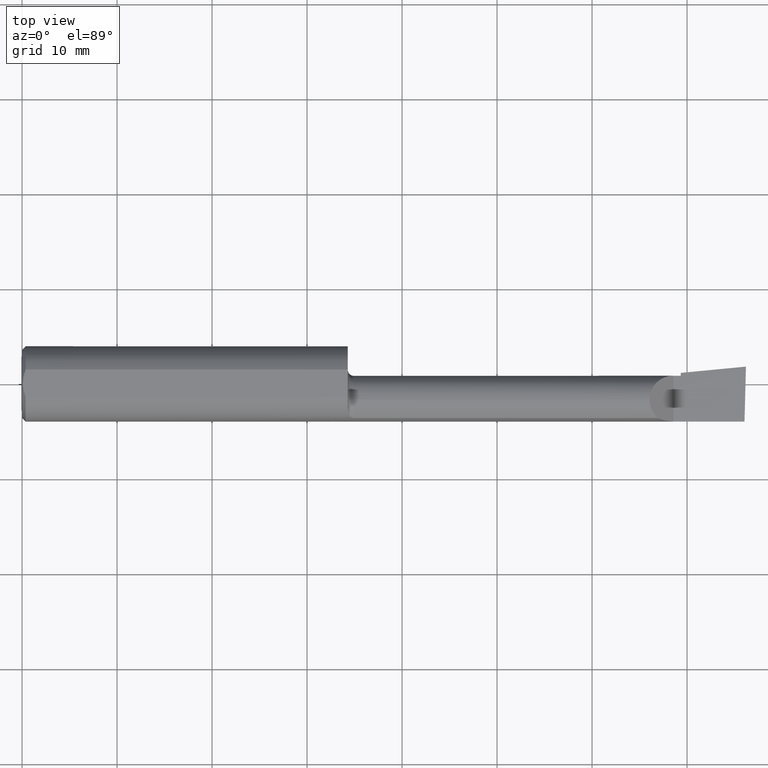
[diagram: clean part render]
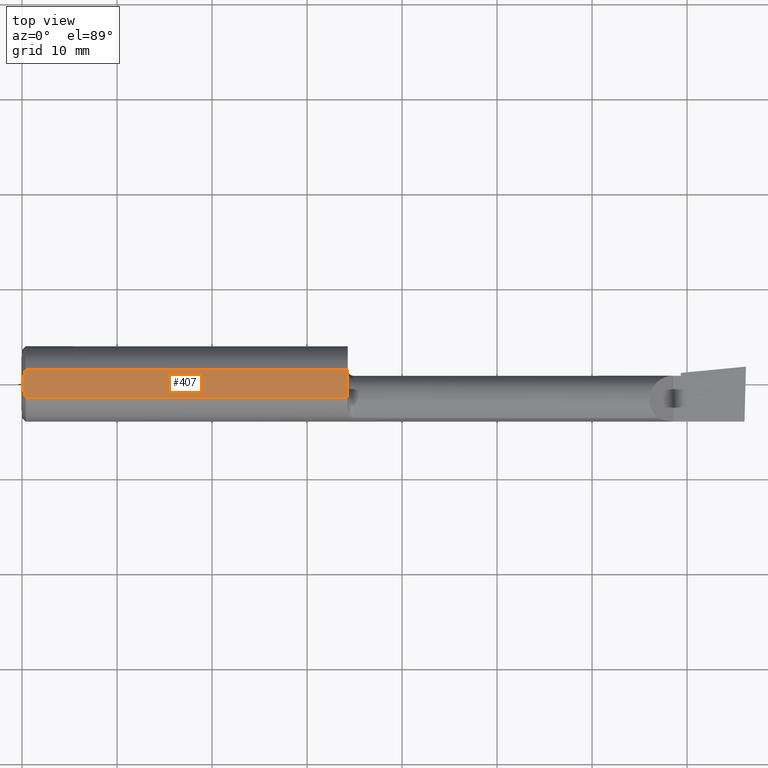
[diagram: same view with one face highlighted and labeled with its STEP entity id]
A machine part, top view. The second image highlights one B-rep face of the part: STEP entity #407.
In plain terms, the highlighted planar face has unit normal (0, -0, -1).
Its self-contained STEP definition (entity closure, byte-faithful):
#1 = EDGE_LOOP ( 'NONE', ( #568, #317, #294, #90, #201 ) ) ;
#2 = CARTESIAN_POINT ( 'NONE',  ( 0.01161840624095555018, -0.04838974479540033430, 0.1451000000000000345 ) ) ;
#9 = CARTESIAN_POINT ( 'NONE',  ( 0.008818052469297050708, -0.03886761757380372689, 0.1451000000000000068 ) ) ;
#47 = EDGE_CURVE ( 'NONE', #246, #57, #459, .T. ) ;
#51 = DIRECTION ( 'NONE',  ( 0.0000000000000000000, 1.000000000000000000, -1.656870447394628358E-16 ) ) ;
#57 = VERTEX_POINT ( 'NONE', #265 ) ;
#66 = AXIS2_PLACEMENT_3D ( 'NONE', #162, #383, #51 ) ;
#67 = EDGE_CURVE ( 'NONE', #337, #246, #408, .T. ) ;
#68 = CARTESIAN_POINT ( 'NONE',  ( 0.0000000000000000000, -0.05756040305626783371, 0.1450999999999999512 ) ) ;
#75 = CARTESIAN_POINT ( 'NONE',  ( 1.350000000000000089, 0.2061000000000000332, 0.1450999999999999512 ) ) ;
#90 = ORIENTED_EDGE ( 'NONE', *, *, #47, .F. ) ;
#102 = EDGE_CURVE ( 'NONE', #529, #479, #112, .T. ) ;
#112 = LINE ( 'NONE', #281, #690 ) ;
#162 = CARTESIAN_POINT ( 'NONE',  ( 3.000000000000000444, 0.2061000000000000332, 0.1450999999999999512 ) ) ;
#177 = CARTESIAN_POINT ( 'NONE',  ( 0.004000000000000188301, -0.009851916903761191377, 0.1450999999999999512 ) ) ;
#183 = CARTESIAN_POINT ( 'NONE',  ( 0.004000000000000238608, 1.884449684559922719E-17, 0.1450999999999999790 ) ) ;
#184 = DIRECTION ( 'NONE',  ( 0.0000000000000000000, -1.000000000000000000, 1.656870447394628358E-16 ) ) ;
#201 = ORIENTED_EDGE ( 'NONE', *, *, #67, .F. ) ;
#208 = CARTESIAN_POINT ( 'NONE',  ( 0.01499999999999999424, -0.05756040305626774350, 0.1451000000000000068 ) ) ;
#228 = VECTOR ( 'NONE', #184, 39.37007874015748143 ) ;
#246 = VERTEX_POINT ( 'NONE', #261 ) ;
#253 = DIRECTION ( 'NONE',  ( 1.000000000000000000, 0.0000000000000000000, 0.0000000000000000000 ) ) ;
#261 = CARTESIAN_POINT ( 'NONE',  ( 0.01499999999999999424, -0.05756040305626774350, 0.1451000000000000068 ) ) ;
#265 = CARTESIAN_POINT ( 'NONE',  ( 0.004000000000000238608, 1.884449684559922719E-17, 0.1450999999999999790 ) ) ;
#281 = CARTESIAN_POINT ( 'NONE',  ( 0.0000000000000000000, 0.05756040305626788228, 0.1450999999999999235 ) ) ;
#294 = ORIENTED_EDGE ( 'NONE', *, *, #440, .F. ) ;
#295 = CARTESIAN_POINT ( 'NONE',  ( 0.01499999999999999424, 0.05756040305626788228, 0.1450999999999999235 ) ) ;
#317 = ORIENTED_EDGE ( 'NONE', *, *, #102, .F. ) ;
#321 = DIRECTION ( 'NONE',  ( -1.000000000000000000, -0.0000000000000000000, -0.0000000000000000000 ) ) ;
#328 = CARTESIAN_POINT ( 'NONE',  ( 0.008823987512428478272, 0.03887788046871691605, 0.1450999999999999790 ) ) ;
#337 = VERTEX_POINT ( 'NONE', #438 ) ;
#339 = B_SPLINE_CURVE_WITH_KNOTS ( 'NONE', 3,
 ( #443, #390, #512, #328, #708, #295 ),
 .UNSPECIFIED., .F., .F.,
 ( 4, 2, 4 ),
 ( 0.002889203944960327779, 0.003632851267233512538, 0.004376498589506697297 ),
 .UNSPECIFIED. ) ;
#340 = CARTESIAN_POINT ( 'NONE',  ( 0.005011318927233133005, -0.01959047621504276041, 0.1450999999999999790 ) ) ;
#381 = LINE ( 'NONE', #75, #228 ) ;
#383 = DIRECTION ( 'NONE',  ( 0.0000000000000000000, -1.656870447394628358E-16, -1.000000000000000000 ) ) ;
#385 = FACE_OUTER_BOUND ( 'NONE', #1, .T. ) ;
#390 = CARTESIAN_POINT ( 'NONE',  ( 0.004000000000000188301, 0.009855731042683137794, 0.1450999999999999790 ) ) ;
#407 = ADVANCED_FACE ( 'NONE', ( #385 ), #600, .F. ) ;
#408 = LINE ( 'NONE', #68, #667 ) ;
#438 = CARTESIAN_POINT ( 'NONE',  ( 1.350000000000000089, -0.05756040305626776432, 0.1451000000000000068 ) ) ;
#439 = CARTESIAN_POINT ( 'NONE',  ( 0.01499999999999999424, 0.05756040305626788228, 0.1450999999999999235 ) ) ;
#440 = EDGE_CURVE ( 'NONE', #57, #529, #339, .T. ) ;
#443 = CARTESIAN_POINT ( 'NONE',  ( 0.004000000000000238608, 1.884449684559922719E-17, 0.1450999999999999790 ) ) ;
#459 = B_SPLINE_CURVE_WITH_KNOTS ( 'NONE', 3,
 ( #208, #2, #9, #340, #177, #183 ),
 .UNSPECIFIED., .F., .F.,
 ( 4, 2, 4 ),
 ( 0.001402484879066372495, 0.002145844412013350570, 0.002889203944960327779 ),
 .UNSPECIFIED. ) ;
#479 = VERTEX_POINT ( 'NONE', #544 ) ;
#512 = CARTESIAN_POINT ( 'NONE',  ( 0.005030132703184962174, 0.01970541148932064557, 0.1451000000000000068 ) ) ;
#529 = VERTEX_POINT ( 'NONE', #439 ) ;
#544 = CARTESIAN_POINT ( 'NONE',  ( 1.350000000000000089, 0.05756040305626788228, 0.1450999999999999512 ) ) ;
#568 = ORIENTED_EDGE ( 'NONE', *, *, #649, .F. ) ;
#600 = PLANE ( 'NONE',  #66 ) ;
#649 = EDGE_CURVE ( 'NONE', #479, #337, #381, .T. ) ;
#667 = VECTOR ( 'NONE', #321, 39.37007874015748143 ) ;
#690 = VECTOR ( 'NONE', #253, 39.37007874015748143 ) ;
#708 = CARTESIAN_POINT ( 'NONE',  ( 0.01158831187866387127, 0.04830813087846574233, 0.1450999999999999512 ) ) ;